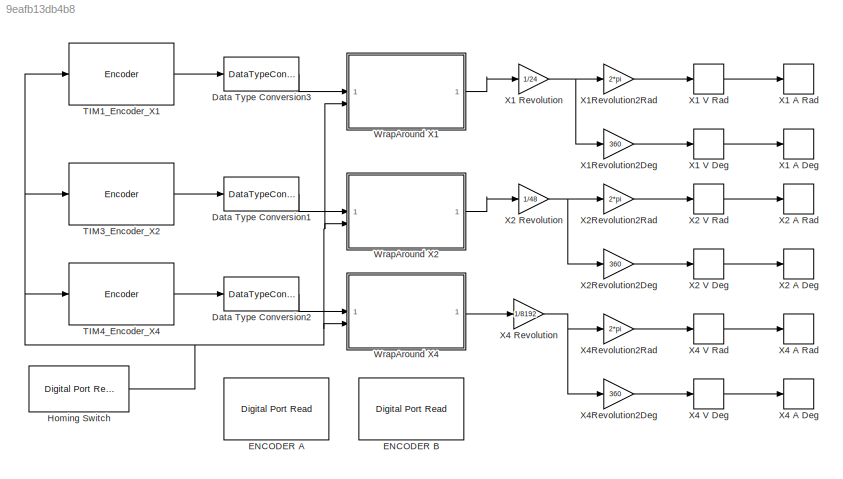
MODEL slx_9eafb13db4b8
KIND model
CONFIG AbsTol = auto
CONFIG EnableMultiTasking = on
CONFIG FixedStep = 0.0001
CONFIG MaxStep = auto
CONFIG MinStep = auto
CONFIG RelTol = 1e-3
CONFIG SampleTimeConstraint = Unconstrained
CONFIG SolverName = FixedStepAuto
CONFIG StartTime = 0.0
CONFIG StopTime = inf
BLOCK [DataTypeConversion] Data Type Conversion1
  OutDataTypeStr = double
  RndMeth = Floor
  SaturateOnIntegerOverflow = off
BLOCK [DataTypeConversion] Data Type Conversion2
  OutDataTypeStr = double
  RndMeth = Floor
  SaturateOnIntegerOverflow = off
BLOCK [DataTypeConversion] Data Type Conversion3
  OutDataTypeStr = double
  RndMeth = Floor
  SaturateOnIntegerOverflow = off
BLOCK [Reference] ENCODER  A  REF=stm32f4xxblockslib/Digital Port Read
  LibrarySourceBlock = stm32g4xxblockslib/Digital Port Read
  SourceBlock = stm32f4xxblockslib/Digital Port Read
  SourceType = stm32cube.blocks.DigitalPortRead
BLOCK [Reference] ENCODER  B  REF=stm32f4xxblockslib/Digital Port Read
  LibrarySourceBlock = stm32g4xxblockslib/Digital Port Read
  SourceBlock = stm32f4xxblockslib/Digital Port Read
  SourceType = stm32cube.blocks.DigitalPortRead
BLOCK [Reference] Homing Switch  REF=stm32f4xxblockslib/Digital Port Read
  LibrarySourceBlock = stm32g4xxblockslib/Digital Port Read
  SourceBlock = stm32f4xxblockslib/Digital Port Read
  SourceType = stm32cube.blocks.DigitalPortRead
BLOCK [Reference] TIM1_Encoder_X1  REF=stm32g4xxblockslib/Encoder
  SourceBlock = stm32g4xxblockslib/Encoder
  SourceType = stm32cube.blocks.EncoderBlockForG4
BLOCK [Reference] TIM3_Encoder_X2  REF=stm32g4xxblockslib/Encoder
  SourceBlock = stm32g4xxblockslib/Encoder
  SourceType = stm32cube.blocks.EncoderBlockForG4
BLOCK [Reference] TIM4_Encoder_X4  REF=stm32g4xxblockslib/Encoder
  SourceBlock = stm32g4xxblockslib/Encoder
  SourceType = stm32cube.blocks.EncoderBlockForG4
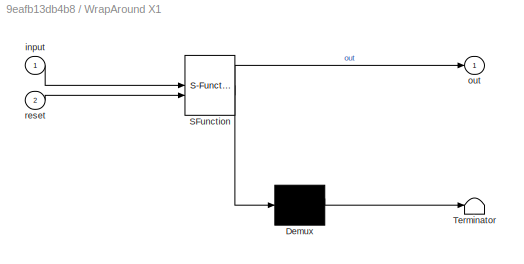
BLOCK [SubSystem] WrapAround X1
  ErrorFcn = Stateflow.Translate.translate
  PermitHierarchicalResolution = ExplicitOnly
  SFBlockType = MATLAB Function
  TreatAsAtomicUnit = on
BLOCK [Demux] WrapAround X1/ Demux 
  Outputs = 1
BLOCK [S-Function] WrapAround X1/ SFunction 
  EnableBusSupport = off
  FunctionName = sf_sfun
  PortCounts = [2 2]
  SFcnIsStateOwnerBlock = off
  SFunctionDeploymentMode = off
  Tag = Stateflow S-Function 3
BLOCK [Terminator] WrapAround X1/ Terminator 
BLOCK [Inport] WrapAround X1/input
BLOCK [Outport] WrapAround X1/out
BLOCK [Inport] WrapAround X1/reset
  Port = 2
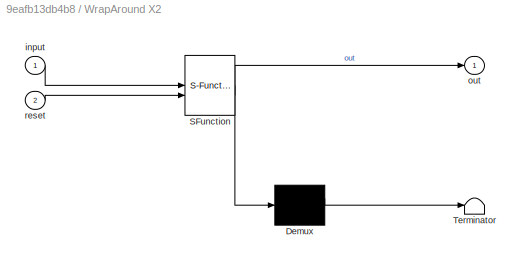
BLOCK [SubSystem] WrapAround X2
  ErrorFcn = Stateflow.Translate.translate
  PermitHierarchicalResolution = ExplicitOnly
  SFBlockType = MATLAB Function
  TreatAsAtomicUnit = on
BLOCK [Demux] WrapAround X2/ Demux 
  Outputs = 1
BLOCK [S-Function] WrapAround X2/ SFunction 
  EnableBusSupport = off
  FunctionName = sf_sfun
  PortCounts = [2 2]
  SFcnIsStateOwnerBlock = off
  SFunctionDeploymentMode = off
  Tag = Stateflow S-Function 2
BLOCK [Terminator] WrapAround X2/ Terminator 
BLOCK [Inport] WrapAround X2/input
BLOCK [Outport] WrapAround X2/out
BLOCK [Inport] WrapAround X2/reset
  Port = 2
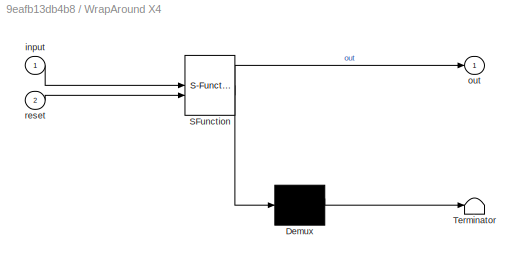
BLOCK [SubSystem] WrapAround X4
  ErrorFcn = Stateflow.Translate.translate
  PermitHierarchicalResolution = ExplicitOnly
  SFBlockType = MATLAB Function
  TreatAsAtomicUnit = on
BLOCK [Demux] WrapAround X4/ Demux 
  Outputs = 1
BLOCK [S-Function] WrapAround X4/ SFunction 
  EnableBusSupport = off
  FunctionName = sf_sfun
  PortCounts = [2 2]
  SFcnIsStateOwnerBlock = off
  SFunctionDeploymentMode = off
  Tag = Stateflow S-Function 1
BLOCK [Terminator] WrapAround X4/ Terminator 
BLOCK [Inport] WrapAround X4/input
BLOCK [Outport] WrapAround X4/out
BLOCK [Inport] WrapAround X4/reset
  Port = 2
BLOCK [Derivative] X1 A Deg
BLOCK [Derivative] X1 A Rad
BLOCK [Gain] X1 Revolution
  Gain = 1/24
BLOCK [Derivative] X1 V Deg
BLOCK [Derivative] X1 V Rad
BLOCK [Gain] X1Revolution2Deg
  Gain = 360
BLOCK [Gain] X1Revolution2Rad
  Gain = 2*pi
BLOCK [Derivative] X2 A Deg
BLOCK [Derivative] X2 A Rad
BLOCK [Gain] X2 Revolution
  Gain = 1/48
BLOCK [Derivative] X2 V Deg
BLOCK [Derivative] X2 V Rad
BLOCK [Gain] X2Revolution2Deg
  Gain = 360
BLOCK [Gain] X2Revolution2Rad
  Gain = 2*pi
BLOCK [Derivative] X4 A Deg
BLOCK [Derivative] X4 A Rad
BLOCK [Gain] X4 Revolution
  Gain = 1/8192
BLOCK [Derivative] X4 V Deg
BLOCK [Derivative] X4 V Rad
BLOCK [Gain] X4Revolution2Deg
  Gain = 360
BLOCK [Gain] X4Revolution2Rad
  Gain = 2*pi
LINE Data Type Conversion1:1 -> WrapAround X2:1
LINE Data Type Conversion2:1 -> WrapAround X4:1
LINE Data Type Conversion3:1 -> WrapAround X1:1
NET Homing Switch:1 -> TIM1_Encoder_X1:1, TIM3_Encoder_X2:1, TIM4_Encoder_X4:1, WrapAround X1:2, WrapAround X2:2, WrapAround X4:2
LINE TIM1_Encoder_X1:1 -> Data Type Conversion3:1
LINE TIM3_Encoder_X2:1 -> Data Type Conversion1:1
LINE TIM4_Encoder_X4:1 -> Data Type Conversion2:1
LINE WrapAround X1:1 -> X1 Revolution:1
LINE WrapAround X2:1 -> X2 Revolution:1
LINE WrapAround X4:1 -> X4 Revolution:1
NET X1 Revolution:1 -> X1Revolution2Deg:1, X1Revolution2Rad:1
LINE X1 V Deg:1 -> X1 A Deg:1
LINE X1 V Rad:1 -> X1 A Rad:1
LINE X1Revolution2Deg:1 -> X1 V Deg:1
LINE X1Revolution2Rad:1 -> X1 V Rad:1
NET X2 Revolution:1 -> X2Revolution2Deg:1, X2Revolution2Rad:1
LINE X2 V Deg:1 -> X2 A Deg:1
LINE X2 V Rad:1 -> X2 A Rad:1
LINE X2Revolution2Deg:1 -> X2 V Deg:1
LINE X2Revolution2Rad:1 -> X2 V Rad:1
NET X4 Revolution:1 -> X4Revolution2Deg:1, X4Revolution2Rad:1
LINE X4 V Deg:1 -> X4 A Deg:1
LINE X4 V Rad:1 -> X4 A Rad:1
LINE X4Revolution2Deg:1 -> X4 V Deg:1
LINE X4Revolution2Rad:1 -> X4 V Rad:1
note: NET lines group one-source signal fan-out (src -> all destinations, sorted); 1:1 wires keep LINE
CHART WrapAround X4 states=1 transitions=1
  STATE_LABEL 'eML_blk_kernel()'
  STATE_LABEL 'SCRIPT:\nfunction out = fcn(input, reset)\npersistent carry;\npersistent preV;\npersistent offset;\nif isempty(carry)\n    carry = 0; \nend \nif isempty(preV)\n    preV = 0;\nend \nif isempty(offset)\n    offset = 0;\nend \n\ndiff = input - preV; \nif diff > 30720\n    carry = carry - 1;\nelseif diff < -30720\n    carry = carry + 1;\nend \n\nif reset == 1 \n    offset = input + (carry * 61440);\nend\n\npreV = input;\nout = ...<+36ch>'  <repeated x3 — deduplicated; at blocks: WrapAround X4, WrapAround X2, WrapAround X1>
CHART WrapAround X2 states=1 transitions=1
  STATE_LABEL 'eML_blk_kernel()'
CHART WrapAround X1 states=1 transitions=1
  STATE_LABEL 'eML_blk_kernel()'
CHART  states=0 transitions=0
CHART  states=0 transitions=0
CHART  states=0 transitions=0
